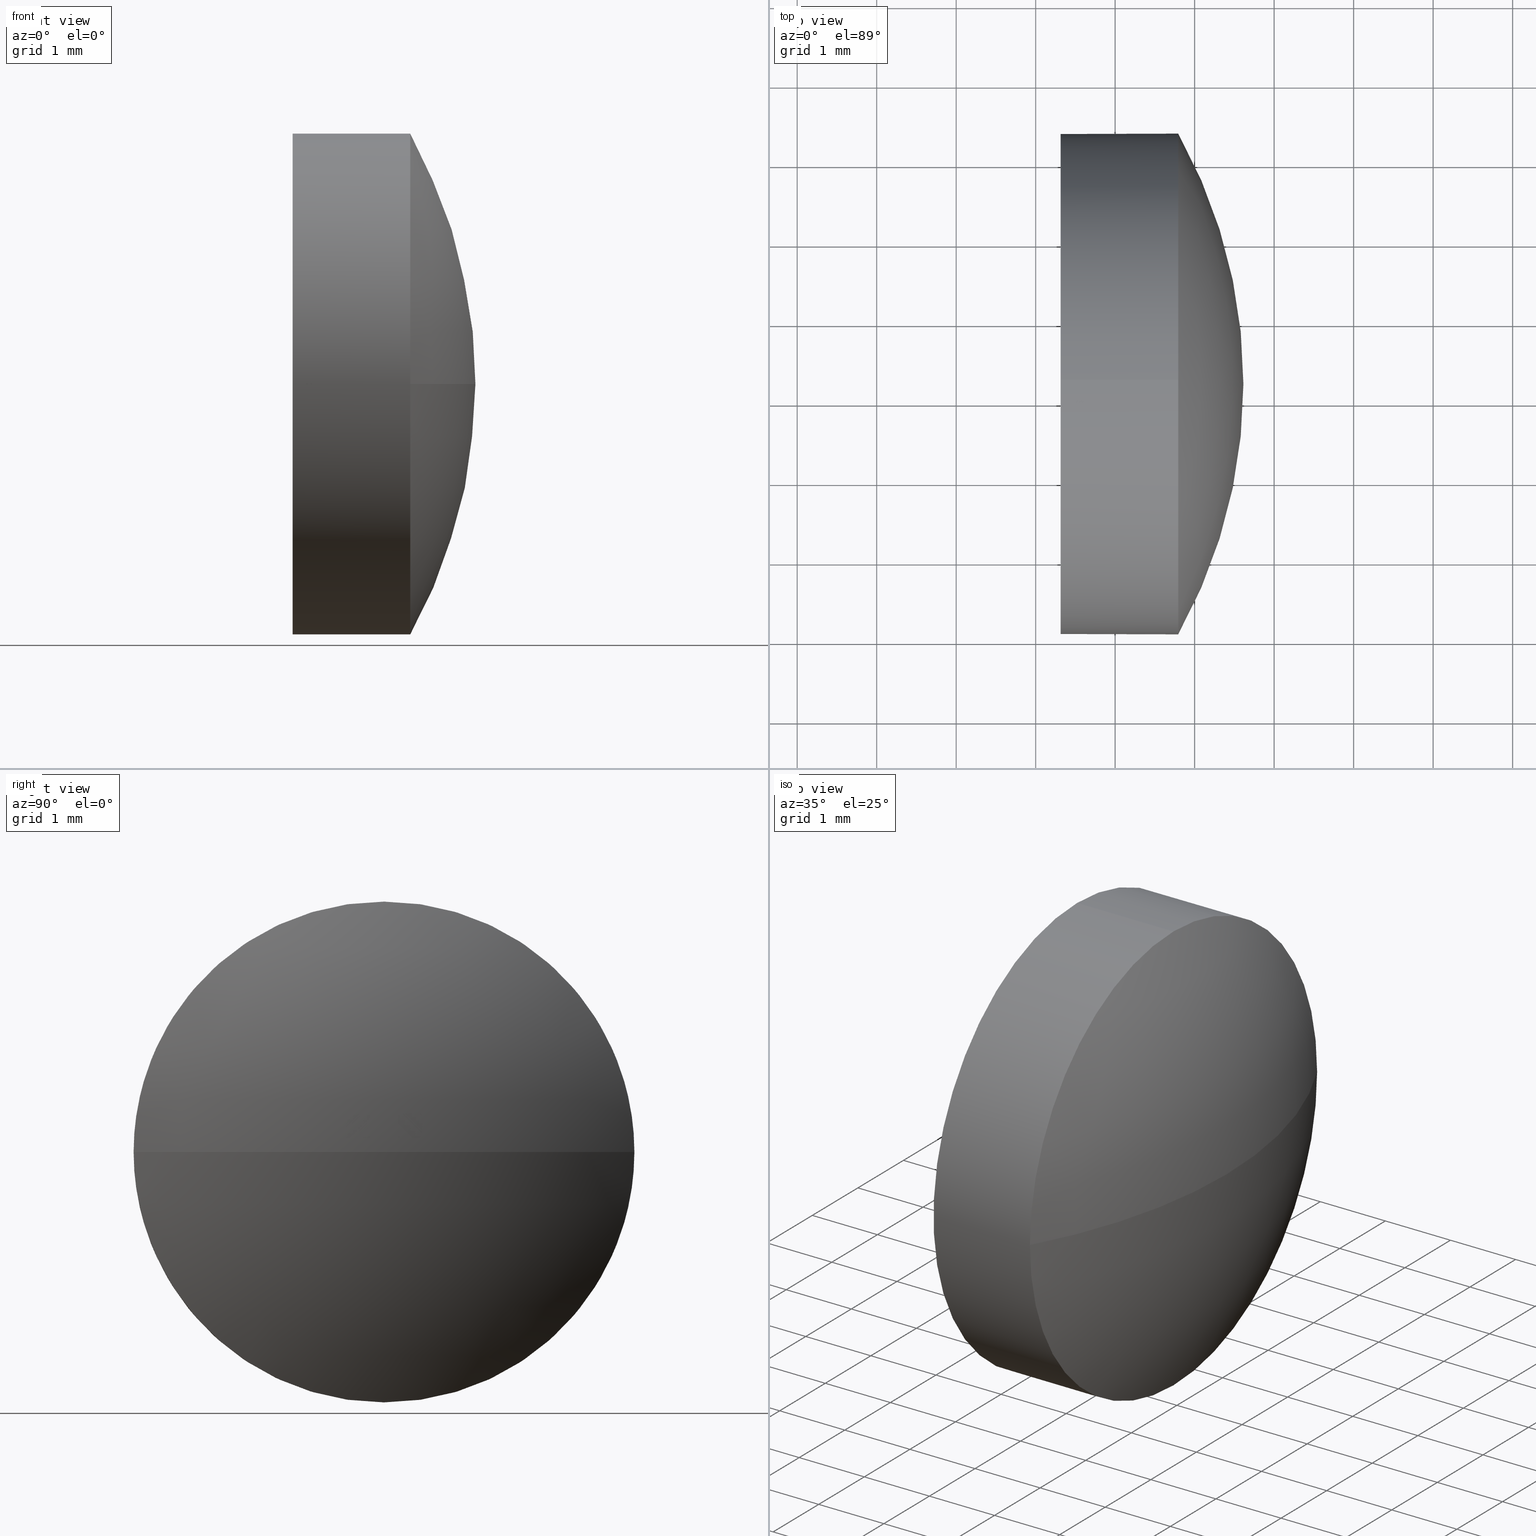
[diagram: canonical four-view strip — front | top / right | iso, engineering-drawing reading convention]
A machine part, canonical four-view strip (front | top / right | iso — engineering-drawing reading convention). The complete STEP part file that produces these views, byte-faithful:
ISO-10303-21;
HEADER;
FILE_DESCRIPTION (( 'STEP AP214' ),
    '1' );
FILE_NAME ('100094.STEP',
    '2019-05-13T05:37:30',
    ( '' ),
    ( '' ),
    'SwSTEP 2.0',
    'SolidWorks 2016',
    '' );
FILE_SCHEMA (( 'AUTOMOTIVE_DESIGN' ));
ENDSEC;

DATA;
#1 = PLANE ( 'NONE',  #147 ) ;
#2 = DIRECTION ( 'NONE',  ( 1.000000000000000000, 0.0000000000000000000, 0.0000000000000000000 ) ) ;
#3 = CARTESIAN_POINT ( 'NONE',  ( 533.7935078641276000, 80.37052637251875400, 0.0000000000000000000 ) ) ;
#4 = ORIENTED_EDGE ( 'NONE', *, *, #59, .F. ) ;
#5 = DIRECTION ( 'NONE',  ( 0.0000000000000000000, 1.000000000000000000, 0.0000000000000000000 ) ) ;
#6 = CARTESIAN_POINT ( 'NONE',  ( 533.7935078641276000, 77.22052637251874800, 0.0000000000000000000 ) ) ;
#7 = ORIENTED_EDGE ( 'NONE', *, *, #160, .T. ) ;
#8 =( NAMED_UNIT ( * ) PLANE_ANGLE_UNIT ( ) SI_UNIT ( $, .RADIAN. ) );
#9 = EDGE_CURVE ( 'NONE', #25, #182, #185, .T. ) ;
#10 = COLOUR_RGB ( '',1.000000000000000000, 1.000000000000000000, 1.000000000000000000 ) ;
#11 = EDGE_CURVE ( 'NONE', #169, #25, #64, .T. ) ;
#12 = VECTOR ( 'NONE', #132, 1000.000000000000000 ) ;
#13 = DIRECTION ( 'NONE',  ( -1.000000000000000000, -0.0000000000000000000, -0.0000000000000000000 ) ) ;
#14 = ADVANCED_FACE ( 'NONE', ( #55 ), #92, .T. ) ;
#15 = UNCERTAINTY_MEASURE_WITH_UNIT (LENGTH_MEASURE( 1.000000000000000100E-005 ), #23, 'distance_accuracy_value', 'NONE');
#16 = APPLICATION_PROTOCOL_DEFINITION ( 'draft international standard', 'automotive_design', 1998, #125 ) ;
#17 = VERTEX_POINT ( 'NONE', #128 ) ;
#18 = SPHERICAL_SURFACE ( 'NONE', #162, 6.460304878048719800 ) ;
#19 = DIRECTION ( 'NONE',  ( -1.000000000000000000, -0.0000000000000000000, -0.0000000000000000000 ) ) ;
#20 = CARTESIAN_POINT ( 'NONE',  ( 532.3135078641275900, 77.22052637251874800, -3.149999999999999900 ) ) ;
#21 = VERTEX_POINT ( 'NONE', #62 ) ;
#22 = CARTESIAN_POINT ( 'NONE',  ( 532.3135078641275900, 77.22052637251874800, 0.0000000000000000000 ) ) ;
#23 =( LENGTH_UNIT ( ) NAMED_UNIT ( * ) SI_UNIT ( .MILLI., .METRE. ) );
#24 = CARTESIAN_POINT ( 'NONE',  ( 534.6135078641276600, 77.22052637251867700, 0.0000000000000000000 ) ) ;
#25 = VERTEX_POINT ( 'NONE', #111 ) ;
#26 = ADVANCED_FACE ( 'NONE', ( #66 ), #166, .T. ) ;
#27 = FACE_OUTER_BOUND ( 'NONE', #173, .T. ) ;
#28 = VECTOR ( 'NONE', #34, 1000.000000000000000 ) ;
#29 = DIRECTION ( 'NONE',  ( 0.0000000000000000000, 0.0000000000000000000, 1.000000000000000000 ) ) ;
#30 = AXIS2_PLACEMENT_3D ( 'NONE', #35, #50, #153 ) ;
#31 = PRESENTATION_STYLE_ASSIGNMENT (( #90 ) ) ;
#32 = AXIS2_PLACEMENT_3D ( 'NONE', #73, #76, #2 ) ;
#33 = AXIS2_PLACEMENT_3D ( 'NONE', #95, #13, #109 ) ;
#34 = DIRECTION ( 'NONE',  ( -1.000000000000000000, -0.0000000000000000000, -0.0000000000000000000 ) ) ;
#35 = CARTESIAN_POINT ( 'NONE',  ( 533.7935078641276000, 77.22052637251874800, 0.0000000000000000000 ) ) ;
#36 = ORIENTED_EDGE ( 'NONE', *, *, #126, .T. ) ;
#37 = AXIS2_PLACEMENT_3D ( 'NONE', #179, #113, #85 ) ;
#38 = AXIS2_PLACEMENT_3D ( 'NONE', #104, #106, #133 ) ;
#39 = APPLICATION_PROTOCOL_DEFINITION ( 'draft international standard', 'automotive_design', 1998, #51 ) ;
#40 = LINE ( 'NONE', #87, #12 ) ;
#41 =( NAMED_UNIT ( * ) PLANE_ANGLE_UNIT ( ) SI_UNIT ( $, .RADIAN. ) );
#42 = AXIS2_PLACEMENT_3D ( 'NONE', #83, #100, #70 ) ;
#43 = AXIS2_PLACEMENT_3D ( 'NONE', #6, #121, #120 ) ;
#44 = ORIENTED_EDGE ( 'NONE', *, *, #11, .F. ) ;
#45 = CARTESIAN_POINT ( 'NONE',  ( 531.4518796945430900, 77.22052637251874800, 3.149999999999999900 ) ) ;
#46 = DIRECTION ( 'NONE',  ( 0.0000000000000000000, 1.000000000000000000, 0.0000000000000000000 ) ) ;
#47 = DIRECTION ( 'NONE',  ( 1.000000000000000000, 0.0000000000000000000, 0.0000000000000000000 ) ) ;
#48 = PRESENTATION_STYLE_ASSIGNMENT (( #118 ) ) ;
#49 = CIRCLE ( 'NONE', #30, 3.149999999999999900 ) ;
#50 = DIRECTION ( 'NONE',  ( -1.000000000000000000, -0.0000000000000000000, -0.0000000000000000000 ) ) ;
#51 = APPLICATION_CONTEXT ( 'automotive_design' ) ;
#52 = ORIENTED_EDGE ( 'NONE', *, *, #9, .F. ) ;
#53 =( GEOMETRIC_REPRESENTATION_CONTEXT ( 3 ) GLOBAL_UNCERTAINTY_ASSIGNED_CONTEXT ( ( #15 ) ) GLOBAL_UNIT_ASSIGNED_CONTEXT ( ( #23, #8, #135 ) ) REPRESENTATION_CONTEXT ( 'NONE', 'WORKASPACE' ) );
#54 = FILL_AREA_STYLE ('',( #131 ) ) ;
#55 = FACE_OUTER_BOUND ( 'NONE', #98, .T. ) ;
#56 = EDGE_LOOP ( 'NONE', ( #4, #143, #119, #58 ) ) ;
#57 = PRODUCT_DEFINITION ( 'δ֪', '', #71, #152 ) ;
#58 = ORIENTED_EDGE ( 'NONE', *, *, #183, .F. ) ;
#59 = EDGE_CURVE ( 'NONE', #151, #17, #122, .T. ) ;
#60 = CIRCLE ( 'NONE', #38, 3.149999999999999900 ) ;
#61 = MECHANICAL_DESIGN_GEOMETRIC_PRESENTATION_REPRESENTATION (  '', ( #156 ), #167 ) ;
#62 = CARTESIAN_POINT ( 'NONE',  ( 533.7935078641276000, 77.22052637251874800, -3.149999999999999900 ) ) ;
#63 = DIRECTION ( 'NONE',  ( 0.0000000000000000000, 0.0000000000000000000, 1.000000000000000000 ) ) ;
#64 = LINE ( 'NONE', #45, #28 ) ;
#65 = AXIS2_PLACEMENT_3D ( 'NONE', #164, #72, #141 ) ;
#66 = FACE_OUTER_BOUND ( 'NONE', #112, .T. ) ;
#67 = ADVANCED_FACE ( 'NONE', ( #178 ), #18, .T. ) ;
#68 = PRODUCT_DEFINITION_SHAPE ( 'NONE', 'NONE',  #57 ) ;
#69 = SURFACE_STYLE_FILL_AREA ( #81 ) ;
#70 = DIRECTION ( 'NONE',  ( 0.0000000000000000000, 0.0000000000000000000, 1.000000000000000000 ) ) ;
#71 = PRODUCT_DEFINITION_FORMATION_WITH_SPECIFIED_SOURCE ( '�κ�', '', #144, .NOT_KNOWN. ) ;
#72 = DIRECTION ( 'NONE',  ( -1.000000000000000000, -0.0000000000000000000, -0.0000000000000000000 ) ) ;
#73 = CARTESIAN_POINT ( 'NONE',  ( 528.1532029860789000, 77.22052637251867700, 0.0000000000000000000 ) ) ;
#74 = AXIS2_PLACEMENT_3D ( 'NONE', #168, #149, #63 ) ;
#75 = STYLED_ITEM ( 'NONE', ( #48 ), #186 ) ;
#76 = DIRECTION ( 'NONE',  ( -0.0000000000000000000, 0.0000000000000000000, 1.000000000000000000 ) ) ;
#77 = CLOSED_SHELL ( 'NONE', ( #26, #67, #139, #14, #175 ) ) ;
#78 = SURFACE_STYLE_FILL_AREA ( #54 ) ;
#79 = PRESENTATION_LAYER_ASSIGNMENT (  '', '', ( #75 ) ) ;
#80 = ORIENTED_EDGE ( 'NONE', *, *, #59, .T. ) ;
#81 = FILL_AREA_STYLE ('',( #115 ) ) ;
#82 = ORIENTED_EDGE ( 'NONE', *, *, #184, .T. ) ;
#83 = CARTESIAN_POINT ( 'NONE',  ( 532.3135078641275900, 77.22052637251874800, 0.0000000000000000000 ) ) ;
#84 =( GEOMETRIC_REPRESENTATION_CONTEXT ( 3 ) GLOBAL_UNCERTAINTY_ASSIGNED_CONTEXT ( ( #130 ) ) GLOBAL_UNIT_ASSIGNED_CONTEXT ( ( #123, #138, #116 ) ) REPRESENTATION_CONTEXT ( 'NONE', 'WORKASPACE' ) );
#85 = DIRECTION ( 'NONE',  ( 0.0000000000000000000, 1.000000000000000000, 1.224646799147353700E-016 ) ) ;
#86 = EDGE_LOOP ( 'NONE', ( #158, #80, #129, #110 ) ) ;
#87 = CARTESIAN_POINT ( 'NONE',  ( 531.4518796945430900, 77.22052637251874800, -3.149999999999999900 ) ) ;
#88 = MECHANICAL_DESIGN_GEOMETRIC_PRESENTATION_REPRESENTATION (  '', ( #75 ), #84 ) ;
#89 = CIRCLE ( 'NONE', #32, 6.460304878048717100 ) ;
#90 = SURFACE_STYLE_USAGE ( .BOTH. , #170 ) ;
#91 = EDGE_CURVE ( 'NONE', #151, #127, #89, .T. ) ;
#92 = CYLINDRICAL_SURFACE ( 'NONE', #142, 3.149999999999999900 ) ;
#93 = SURFACE_SIDE_STYLE ('',( #69 ) ) ;
#94 =( NAMED_UNIT ( * ) SI_UNIT ( $, .STERADIAN. ) SOLID_ANGLE_UNIT ( ) );
#95 = CARTESIAN_POINT ( 'NONE',  ( 533.7935078641276000, 77.22052637251874800, 0.0000000000000000000 ) ) ;
#96 = SHAPE_DEFINITION_REPRESENTATION ( #68, #157 ) ;
#97 = CIRCLE ( 'NONE', #43, 3.149999999999999900 ) ;
#98 = EDGE_LOOP ( 'NONE', ( #114, #105, #124, #134, #136 ) ) ;
#99 = PRODUCT_RELATED_PRODUCT_CATEGORY ( 'part', '', ( #144 ) ) ;
#100 = DIRECTION ( 'NONE',  ( -1.000000000000000000, -0.0000000000000000000, -0.0000000000000000000 ) ) ;
#101 = CARTESIAN_POINT ( 'NONE',  ( 528.1532029860789000, 77.22052637251867700, 0.0000000000000000000 ) ) ;
#102 = CARTESIAN_POINT ( 'NONE',  ( 533.7935078641276000, 77.22052637251874800, 3.149999999999999900 ) ) ;
#103 = CARTESIAN_POINT ( 'NONE',  ( 528.1532029860789000, 77.22052637251867700, 0.0000000000000000000 ) ) ;
#104 = CARTESIAN_POINT ( 'NONE',  ( 533.7935078641276000, 77.22052637251874800, 0.0000000000000000000 ) ) ;
#105 = ORIENTED_EDGE ( 'NONE', *, *, #180, .T. ) ;
#106 = DIRECTION ( 'NONE',  ( -1.000000000000000000, -0.0000000000000000000, -0.0000000000000000000 ) ) ;
#107 = FACE_OUTER_BOUND ( 'NONE', #56, .T. ) ;
#108 = CARTESIAN_POINT ( 'NONE',  ( 0.0000000000000000000, 0.0000000000000000000, 0.0000000000000000000 ) ) ;
#109 = DIRECTION ( 'NONE',  ( 0.0000000000000000000, 0.0000000000000000000, 1.000000000000000000 ) ) ;
#110 = ORIENTED_EDGE ( 'NONE', *, *, #160, .F. ) ;
#111 = CARTESIAN_POINT ( 'NONE',  ( 532.3135078641275900, 77.22052637251874800, 3.149999999999999900 ) ) ;
#112 = EDGE_LOOP ( 'NONE', ( #7, #36, #52, #44, #82 ) ) ;
#113 = DIRECTION ( 'NONE',  ( 0.0000000000000000000, 1.224646799147353200E-016, -1.000000000000000000 ) ) ;
#114 = ORIENTED_EDGE ( 'NONE', *, *, #126, .F. ) ;
#115 = FILL_AREA_STYLE_COLOUR ( '', #10 ) ;
#116 =( NAMED_UNIT ( * ) SI_UNIT ( $, .STERADIAN. ) SOLID_ANGLE_UNIT ( ) );
#117 = CIRCLE ( 'NONE', #74, 3.149999999999999900 ) ;
#118 = SURFACE_STYLE_USAGE ( .BOTH. , #93 ) ;
#119 = ORIENTED_EDGE ( 'NONE', *, *, #184, .F. ) ;
#120 = DIRECTION ( 'NONE',  ( 0.0000000000000000000, 0.0000000000000000000, 1.000000000000000000 ) ) ;
#121 = DIRECTION ( 'NONE',  ( -1.000000000000000000, -0.0000000000000000000, -0.0000000000000000000 ) ) ;
#122 = CIRCLE ( 'NONE', #37, 6.460304878048717100 ) ;
#123 =( LENGTH_UNIT ( ) NAMED_UNIT ( * ) SI_UNIT ( .MILLI., .METRE. ) );
#124 = ORIENTED_EDGE ( 'NONE', *, *, #183, .T. ) ;
#125 = APPLICATION_CONTEXT ( 'automotive_design' ) ;
#126 = EDGE_CURVE ( 'NONE', #21, #182, #40, .T. ) ;
#127 = VERTEX_POINT ( 'NONE', #3 ) ;
#128 = CARTESIAN_POINT ( 'NONE',  ( 533.7935078641276000, 74.07052637251868500, -3.857637417314155800E-016 ) ) ;
#129 = ORIENTED_EDGE ( 'NONE', *, *, #180, .F. ) ;
#130 = UNCERTAINTY_MEASURE_WITH_UNIT (LENGTH_MEASURE( 1.000000000000000100E-005 ), #123, 'distance_accuracy_value', 'NONE');
#131 = FILL_AREA_STYLE_COLOUR ( '', #161 ) ;
#132 = DIRECTION ( 'NONE',  ( -1.000000000000000000, -0.0000000000000000000, -0.0000000000000000000 ) ) ;
#133 = DIRECTION ( 'NONE',  ( 0.0000000000000000000, 0.0000000000000000000, 1.000000000000000000 ) ) ;
#134 = ORIENTED_EDGE ( 'NONE', *, *, #11, .T. ) ;
#135 =( NAMED_UNIT ( * ) SI_UNIT ( $, .STERADIAN. ) SOLID_ANGLE_UNIT ( ) );
#136 = ORIENTED_EDGE ( 'NONE', *, *, #172, .F. ) ;
#137 = AXIS2_PLACEMENT_3D ( 'NONE', #103, #148, #5 ) ;
#138 =( NAMED_UNIT ( * ) PLANE_ANGLE_UNIT ( ) SI_UNIT ( $, .RADIAN. ) );
#139 = ADVANCED_FACE ( 'NONE', ( #107 ), #163, .T. ) ;
#140 = PRODUCT_CONTEXT ( 'NONE', #51, 'mechanical' ) ;
#141 = DIRECTION ( 'NONE',  ( 0.0000000000000000000, 0.0000000000000000000, 1.000000000000000000 ) ) ;
#142 = AXIS2_PLACEMENT_3D ( 'NONE', #146, #19, #145 ) ;
#143 = ORIENTED_EDGE ( 'NONE', *, *, #91, .T. ) ;
#144 = PRODUCT ( '100094', '100094', '', ( #140 ) ) ;
#145 = DIRECTION ( 'NONE',  ( 0.0000000000000000000, 0.0000000000000000000, 1.000000000000000000 ) ) ;
#146 = CARTESIAN_POINT ( 'NONE',  ( 531.4518796945430900, 77.22052637251874800, 0.0000000000000000000 ) ) ;
#147 = AXIS2_PLACEMENT_3D ( 'NONE', #22, #47, #165 ) ;
#148 = DIRECTION ( 'NONE',  ( -0.0000000000000000000, 0.0000000000000000000, -1.000000000000000000 ) ) ;
#149 = DIRECTION ( 'NONE',  ( -1.000000000000000000, -0.0000000000000000000, -0.0000000000000000000 ) ) ;
#150 = DIRECTION ( 'NONE',  ( -0.0000000000000000000, 0.0000000000000000000, -1.000000000000000000 ) ) ;
#151 = VERTEX_POINT ( 'NONE', #24 ) ;
#152 = PRODUCT_DEFINITION_CONTEXT ( 'detailed design', #125, 'design' ) ;
#153 = DIRECTION ( 'NONE',  ( 0.0000000000000000000, 0.0000000000000000000, 1.000000000000000000 ) ) ;
#154 = UNCERTAINTY_MEASURE_WITH_UNIT (LENGTH_MEASURE( 1.000000000000000100E-005 ), #181, 'distance_accuracy_value', 'NONE');
#155 = ORIENTED_EDGE ( 'NONE', *, *, #172, .T. ) ;
#156 = STYLED_ITEM ( 'NONE', ( #31 ), #157 ) ;
#157 = ADVANCED_BREP_SHAPE_REPRESENTATION ( '100094', ( #186, #159 ), #53 ) ;
#158 = ORIENTED_EDGE ( 'NONE', *, *, #91, .F. ) ;
#159 = AXIS2_PLACEMENT_3D ( 'NONE', #108, #29, #176 ) ;
#160 = EDGE_CURVE ( 'NONE', #127, #21, #60, .T. ) ;
#161 = COLOUR_RGB ( '',1.000000000000000000, 1.000000000000000000, 1.000000000000000000 ) ;
#162 = AXIS2_PLACEMENT_3D ( 'NONE', #101, #150, #46 ) ;
#163 = SPHERICAL_SURFACE ( 'NONE', #137, 6.460304878048719800 ) ;
#164 = CARTESIAN_POINT ( 'NONE',  ( 531.4518796945430900, 77.22052637251874800, 0.0000000000000000000 ) ) ;
#165 = DIRECTION ( 'NONE',  ( 0.0000000000000000000, 0.0000000000000000000, -1.000000000000000000 ) ) ;
#166 = CYLINDRICAL_SURFACE ( 'NONE', #65, 3.149999999999999900 ) ;
#167 =( GEOMETRIC_REPRESENTATION_CONTEXT ( 3 ) GLOBAL_UNCERTAINTY_ASSIGNED_CONTEXT ( ( #154 ) ) GLOBAL_UNIT_ASSIGNED_CONTEXT ( ( #181, #41, #94 ) ) REPRESENTATION_CONTEXT ( 'NONE', 'WORKASPACE' ) );
#168 = CARTESIAN_POINT ( 'NONE',  ( 532.3135078641275900, 77.22052637251874800, 0.0000000000000000000 ) ) ;
#169 = VERTEX_POINT ( 'NONE', #102 ) ;
#170 = SURFACE_SIDE_STYLE ('',( #78 ) ) ;
#171 = ORIENTED_EDGE ( 'NONE', *, *, #9, .T. ) ;
#172 = EDGE_CURVE ( 'NONE', #182, #25, #117, .T. ) ;
#173 = EDGE_LOOP ( 'NONE', ( #171, #155 ) ) ;
#174 = PRESENTATION_LAYER_ASSIGNMENT (  '', '', ( #156 ) ) ;
#175 = ADVANCED_FACE ( 'NONE', ( #27 ), #1, .F. ) ;
#176 = DIRECTION ( 'NONE',  ( 1.000000000000000000, 0.0000000000000000000, 0.0000000000000000000 ) ) ;
#177 = CIRCLE ( 'NONE', #33, 3.149999999999999900 ) ;
#178 = FACE_OUTER_BOUND ( 'NONE', #86, .T. ) ;
#179 = CARTESIAN_POINT ( 'NONE',  ( 528.1532029860789000, 77.22052637251867700, 0.0000000000000000000 ) ) ;
#180 = EDGE_CURVE ( 'NONE', #21, #17, #49, .T. ) ;
#181 =( LENGTH_UNIT ( ) NAMED_UNIT ( * ) SI_UNIT ( .MILLI., .METRE. ) );
#182 = VERTEX_POINT ( 'NONE', #20 ) ;
#183 = EDGE_CURVE ( 'NONE', #17, #169, #97, .T. ) ;
#184 = EDGE_CURVE ( 'NONE', #169, #127, #177, .T. ) ;
#185 = CIRCLE ( 'NONE', #42, 3.149999999999999900 ) ;
#186 = MANIFOLD_SOLID_BREP ( '��ת1', #77 ) ;
ENDSEC;
END-ISO-10303-21;
